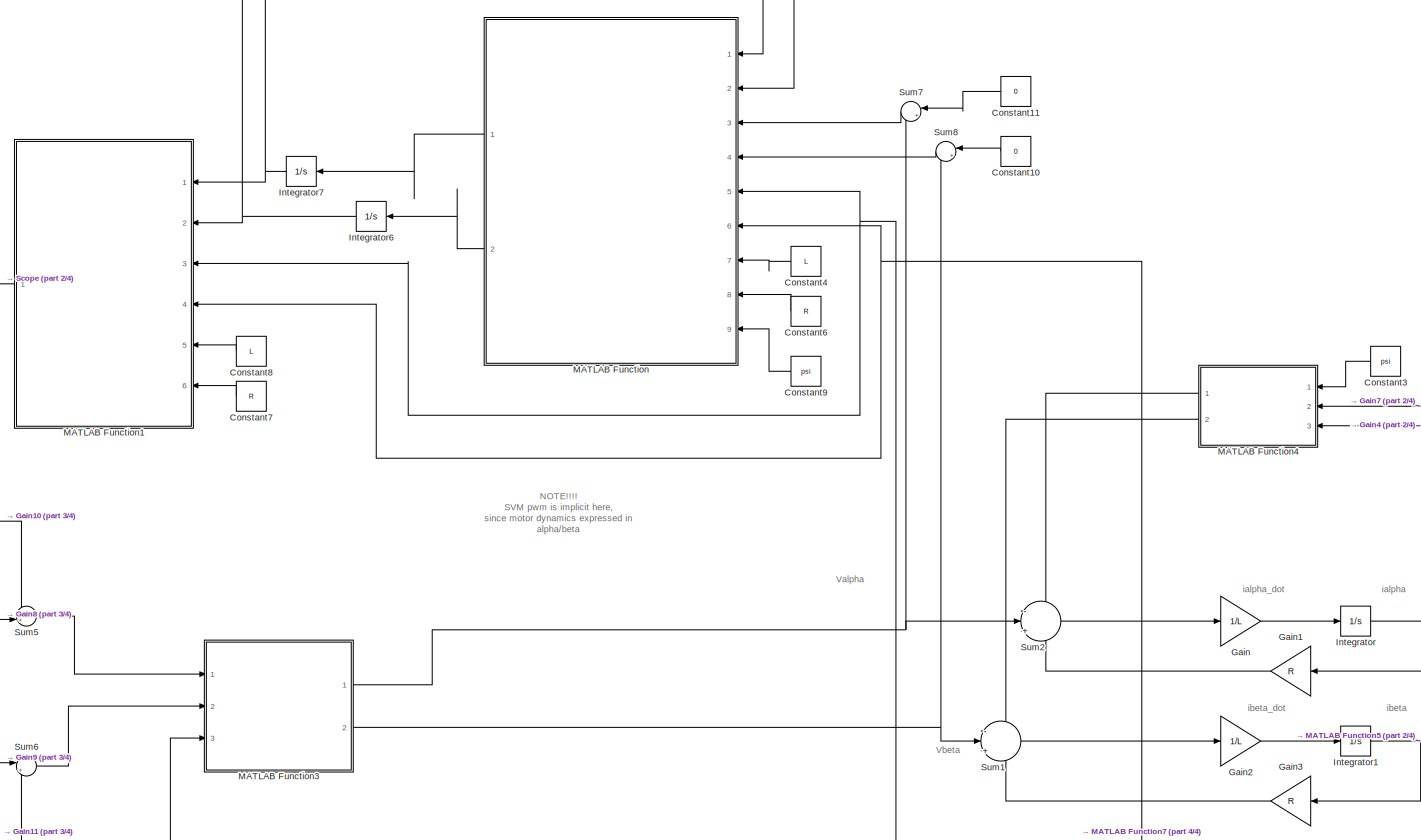
[diagram: root canvas - part 1/4, central region]
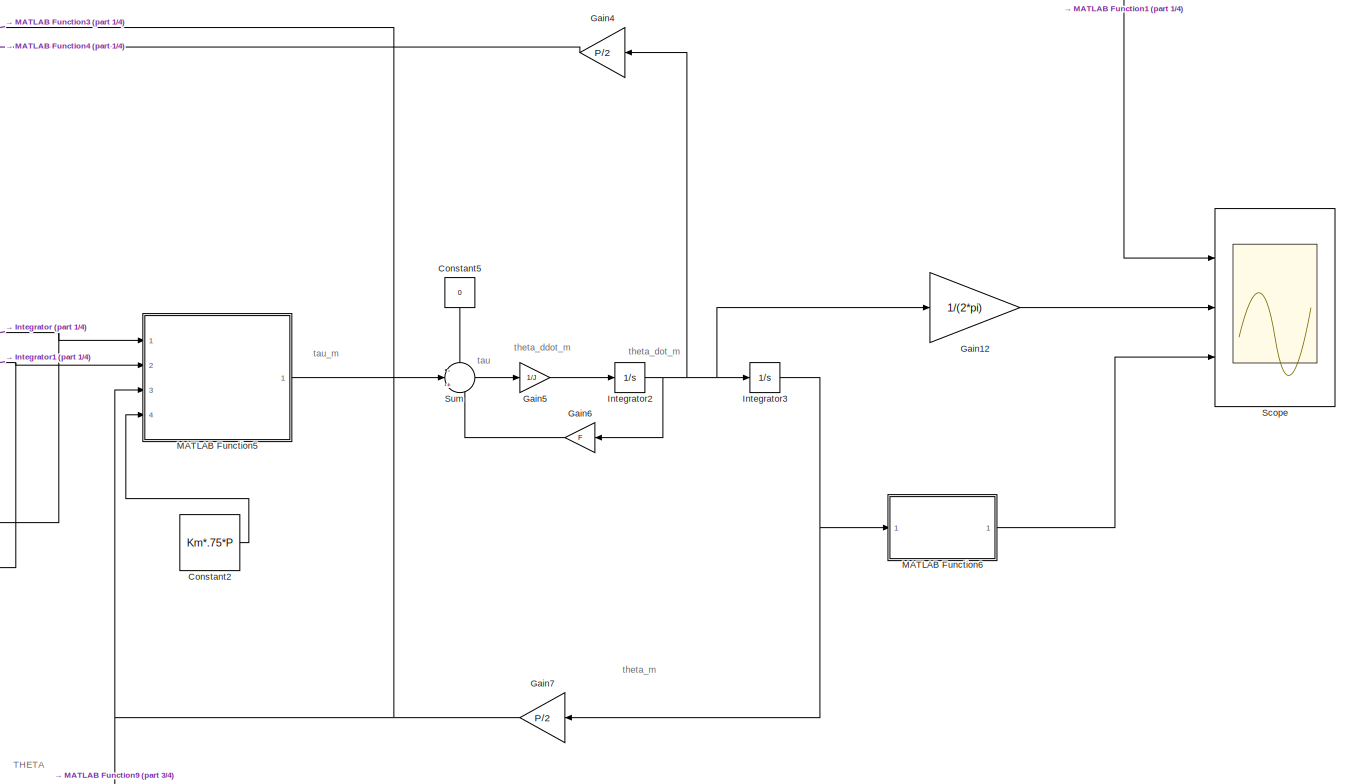
[diagram: root canvas - part 2/4, bottom right region]
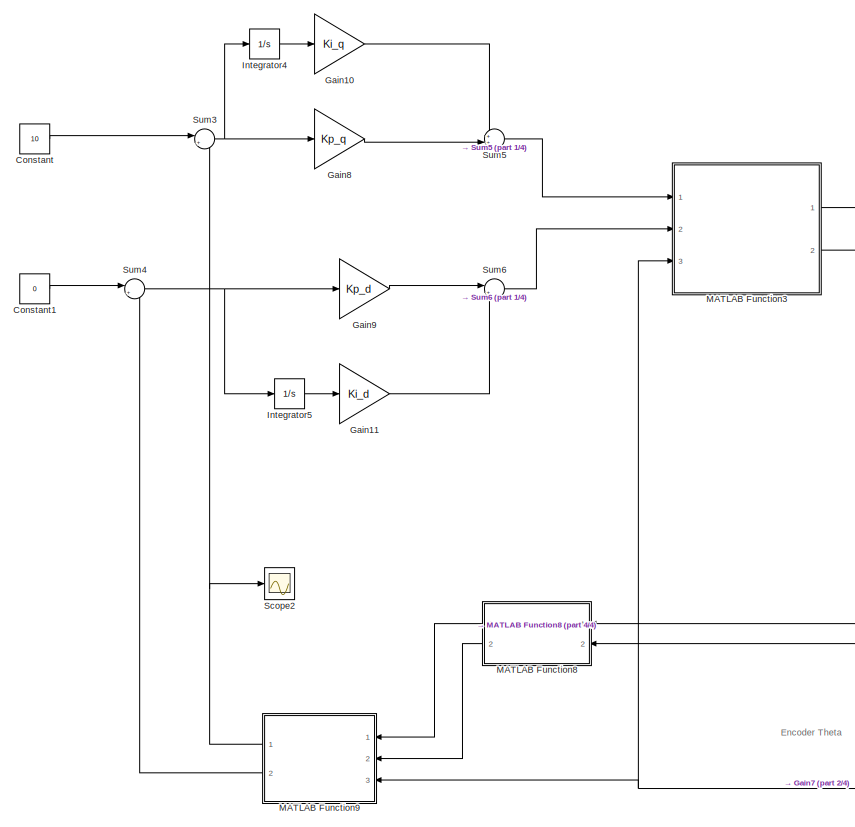
[diagram: root canvas - part 3/4, bottom left region]
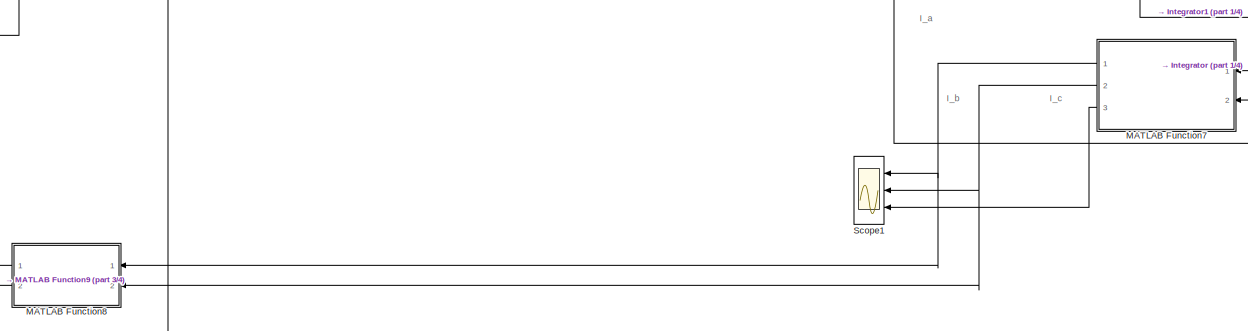
[diagram: root canvas - part 4/4, bottom center region]
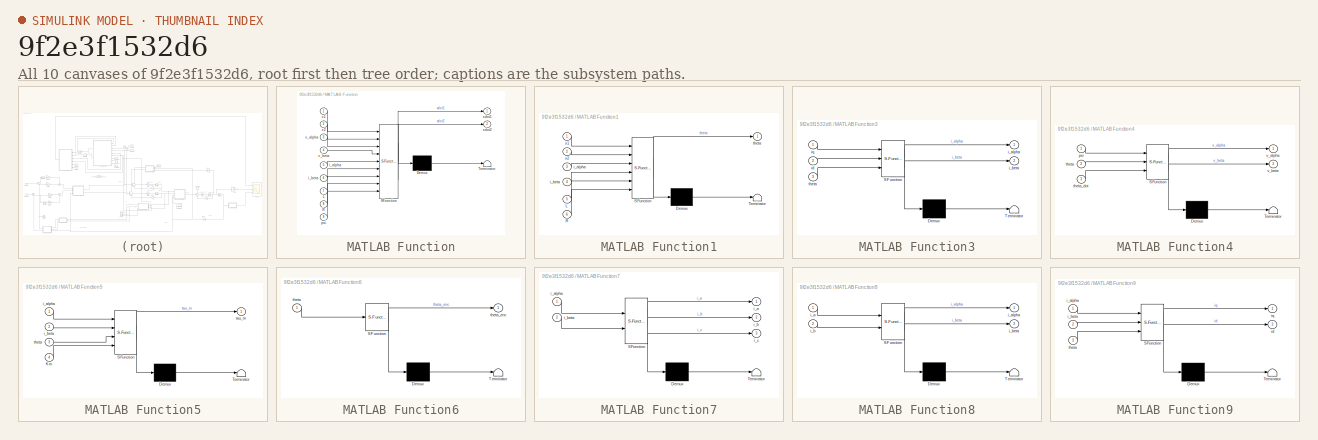
[diagram: thumbnail index - all 10 canvases of the model, root first then tree order]
MODEL slx_9f2e3f1532d6
KIND model
CONFIG AbsTol = auto
CONFIG FixedStep = 1e-6
CONFIG MaxStep = auto
CONFIG MinStep = auto
CONFIG RelTol = 1e-3
CONFIG SampleTimeConstraint = Unconstrained
CONFIG Solver = VariableStepAuto
CONFIG SolverMode = Auto
CONFIG SolverName = VariableStepAuto
CONFIG StartTime = 0.0
CONFIG StopTime = 2
BLOCK [Constant] Constant
  Value = 10
BLOCK [Constant] Constant1
  Value = 0
BLOCK [Constant] Constant10
  Value = 0
BLOCK [Constant] Constant11
  Value = 0
BLOCK [Constant] Constant2
  Value = Km*.75*P
BLOCK [Constant] Constant3
  Value = psi
BLOCK [Constant] Constant4
  Value = L
BLOCK [Constant] Constant5
  Value = 0
BLOCK [Constant] Constant6
  Value = R
BLOCK [Constant] Constant7
  Value = R
BLOCK [Constant] Constant8
  Value = L
BLOCK [Constant] Constant9
  Value = psi
BLOCK [Gain] Gain
  Gain = 1/L
  OutDataTypeStr = Inherit: Inherit via internal rule
  ParamDataTypeStr = Inherit: Inherit via internal rule
  SaturateOnIntegerOverflow = off
BLOCK [Gain] Gain1
  Gain = R
  OutDataTypeStr = Inherit: Inherit via internal rule
  ParamDataTypeStr = Inherit: Inherit via internal rule
  SaturateOnIntegerOverflow = off
BLOCK [Gain] Gain10
  Gain = Ki_q
  OutDataTypeStr = Inherit: Inherit via internal rule
  ParamDataTypeStr = Inherit: Inherit via internal rule
  SaturateOnIntegerOverflow = off
BLOCK [Gain] Gain11
  Gain = Ki_d
  OutDataTypeStr = Inherit: Inherit via internal rule
  ParamDataTypeStr = Inherit: Inherit via internal rule
  SaturateOnIntegerOverflow = off
BLOCK [Gain] Gain12
  Gain = 1/(2*pi)
  OutDataTypeStr = Inherit: Inherit via internal rule
  ParamDataTypeStr = Inherit: Inherit via internal rule
  SaturateOnIntegerOverflow = off
BLOCK [Gain] Gain2
  Gain = 1/L
  OutDataTypeStr = Inherit: Inherit via internal rule
  ParamDataTypeStr = Inherit: Inherit via internal rule
  SaturateOnIntegerOverflow = off
BLOCK [Gain] Gain3
  Gain = R
  OutDataTypeStr = Inherit: Inherit via internal rule
  ParamDataTypeStr = Inherit: Inherit via internal rule
  SaturateOnIntegerOverflow = off
BLOCK [Gain] Gain4
  Gain = P/2
  OutDataTypeStr = Inherit: Inherit via internal rule
  ParamDataTypeStr = Inherit: Inherit via internal rule
  SaturateOnIntegerOverflow = off
BLOCK [Gain] Gain5
  Gain = 1/J
  OutDataTypeStr = Inherit: Inherit via internal rule
  ParamDataTypeStr = Inherit: Inherit via internal rule
  SaturateOnIntegerOverflow = off
BLOCK [Gain] Gain6
  Gain = F
  OutDataTypeStr = Inherit: Inherit via internal rule
  ParamDataTypeStr = Inherit: Inherit via internal rule
  SaturateOnIntegerOverflow = off
BLOCK [Gain] Gain7
  Gain = P/2
  OutDataTypeStr = Inherit: Inherit via internal rule
  ParamDataTypeStr = Inherit: Inherit via internal rule
  SaturateOnIntegerOverflow = off
BLOCK [Gain] Gain8
  Gain = Kp_q
  OutDataTypeStr = Inherit: Inherit via internal rule
  ParamDataTypeStr = Inherit: Inherit via internal rule
  SaturateOnIntegerOverflow = off
BLOCK [Gain] Gain9
  Gain = Kp_d
  OutDataTypeStr = Inherit: Inherit via internal rule
  ParamDataTypeStr = Inherit: Inherit via internal rule
  SaturateOnIntegerOverflow = off
BLOCK [Integrator] Integrator
  Ports = [1, 1]
BLOCK [Integrator] Integrator1
  Ports = [1, 1]
BLOCK [Integrator] Integrator2
  Ports = [1, 1]
BLOCK [Integrator] Integrator3
  Ports = [1, 1]
BLOCK [Integrator] Integrator4
  Ports = [1, 1]
BLOCK [Integrator] Integrator5
  Ports = [1, 1]
BLOCK [Integrator] Integrator6
  Ports = [1, 1]
BLOCK [Integrator] Integrator7
  Ports = [1, 1]
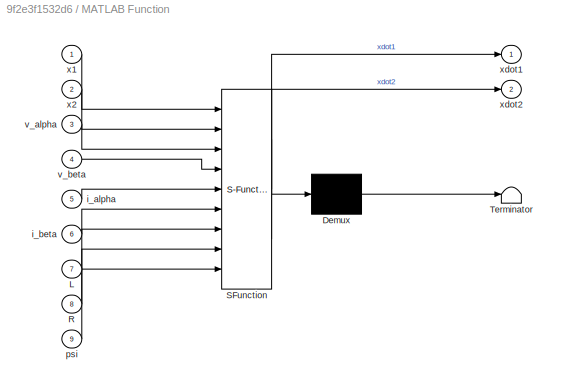
BLOCK [SubSystem] MATLAB Function
  ErrorFcn = Stateflow.Translate.translate
  PermitHierarchicalResolution = ExplicitOnly
  Ports = [9, 2]
  RequestExecContextInheritance = off
  SFBlockType = MATLAB Function
  TreatAsAtomicUnit = on
  Variant = off
BLOCK [Demux] MATLAB Function/ Demux 
  Outputs = 1
  Ports = [1, 1]
BLOCK [S-Function] MATLAB Function/ SFunction 
  EnableBusSupport = on
  FunctionName = sf_sfun
  PortCounts = [9 3]
  Ports = [9, 3]
  SFunctionDeploymentMode = off
  Tag = Stateflow S-Function dynamic_sim 2
BLOCK [Terminator] MATLAB Function/ Terminator 
BLOCK [Inport] MATLAB Function/L
  IconDisplay = Port number
  Port = 7
BLOCK [Inport] MATLAB Function/R
  IconDisplay = Port number
  Port = 8
BLOCK [Inport] MATLAB Function/i_alpha
  IconDisplay = Port number
  Port = 5
BLOCK [Inport] MATLAB Function/i_beta
  IconDisplay = Port number
  Port = 6
BLOCK [Inport] MATLAB Function/psi
  IconDisplay = Port number
  Port = 9
BLOCK [Inport] MATLAB Function/v_alpha
  IconDisplay = Port number
  Port = 3
BLOCK [Inport] MATLAB Function/v_beta
  IconDisplay = Port number
  Port = 4
BLOCK [Inport] MATLAB Function/x1
  IconDisplay = Port number
BLOCK [Inport] MATLAB Function/x2
  IconDisplay = Port number
  Port = 2
BLOCK [Outport] MATLAB Function/xdot1
  IconDisplay = Port number
BLOCK [Outport] MATLAB Function/xdot2
  IconDisplay = Port number
  Port = 2
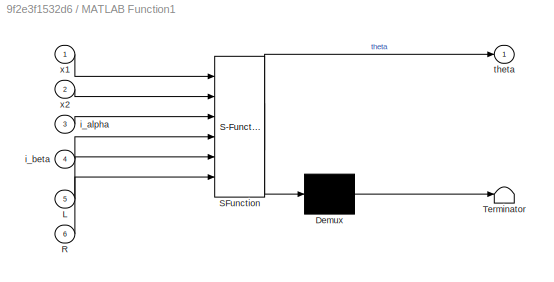
BLOCK [SubSystem] MATLAB Function1
  ErrorFcn = Stateflow.Translate.translate
  PermitHierarchicalResolution = ExplicitOnly
  Ports = [6, 1]
  RequestExecContextInheritance = off
  SFBlockType = MATLAB Function
  TreatAsAtomicUnit = on
  Variant = off
BLOCK [Demux] MATLAB Function1/ Demux 
  Outputs = 1
  Ports = [1, 1]
BLOCK [S-Function] MATLAB Function1/ SFunction 
  EnableBusSupport = on
  FunctionName = sf_sfun
  PortCounts = [6 2]
  Ports = [6, 2]
  SFunctionDeploymentMode = off
  Tag = Stateflow S-Function dynamic_sim 1
BLOCK [Terminator] MATLAB Function1/ Terminator 
BLOCK [Inport] MATLAB Function1/L
  IconDisplay = Port number
  Port = 5
BLOCK [Inport] MATLAB Function1/R
  IconDisplay = Port number
  Port = 6
BLOCK [Inport] MATLAB Function1/i_alpha
  IconDisplay = Port number
  Port = 3
BLOCK [Inport] MATLAB Function1/i_beta
  IconDisplay = Port number
  Port = 4
BLOCK [Outport] MATLAB Function1/theta
  IconDisplay = Port number
BLOCK [Inport] MATLAB Function1/x1
  IconDisplay = Port number
BLOCK [Inport] MATLAB Function1/x2
  IconDisplay = Port number
  Port = 2
BLOCK [SubSystem] MATLAB Function3
  ErrorFcn = Stateflow.Translate.translate
  PermitHierarchicalResolution = ExplicitOnly
  Ports = [3, 2]
  RequestExecContextInheritance = off
  SFBlockType = MATLAB Function
  TreatAsAtomicUnit = on
  Variant = off
BLOCK [Demux] MATLAB Function3/ Demux 
  Outputs = 1
  Ports = [1, 1]
BLOCK [S-Function] MATLAB Function3/ SFunction 
  EnableBusSupport = on
  FunctionName = sf_sfun
  PortCounts = [3 3]
  Ports = [3, 3]
  SFunctionDeploymentMode = off
  Tag = Stateflow S-Function dynamic_sim 4
BLOCK [Terminator] MATLAB Function3/ Terminator 
BLOCK [Outport] MATLAB Function3/i_alpha
  IconDisplay = Port number
BLOCK [Outport] MATLAB Function3/i_beta
  IconDisplay = Port number
  Port = 2
BLOCK [Inport] MATLAB Function3/id
  IconDisplay = Port number
  Port = 2
BLOCK [Inport] MATLAB Function3/iq
  IconDisplay = Port number
BLOCK [Inport] MATLAB Function3/theta
  IconDisplay = Port number
  Port = 3
BLOCK [SubSystem] MATLAB Function4
  ErrorFcn = Stateflow.Translate.translate
  PermitHierarchicalResolution = ExplicitOnly
  Ports = [3, 2]
  RequestExecContextInheritance = off
  SFBlockType = MATLAB Function
  TreatAsAtomicUnit = on
  Variant = off
BLOCK [Demux] MATLAB Function4/ Demux 
  Outputs = 1
  Ports = [1, 1]
BLOCK [S-Function] MATLAB Function4/ SFunction 
  EnableBusSupport = on
  FunctionName = sf_sfun
  PortCounts = [3 3]
  Ports = [3, 3]
  SFunctionDeploymentMode = off
  Tag = Stateflow S-Function dynamic_sim 5
BLOCK [Terminator] MATLAB Function4/ Terminator 
BLOCK [Inport] MATLAB Function4/psi
  IconDisplay = Port number
BLOCK [Inport] MATLAB Function4/theta
  IconDisplay = Port number
  Port = 2
BLOCK [Inport] MATLAB Function4/theta_dot
  IconDisplay = Port number
  Port = 3
BLOCK [Outport] MATLAB Function4/v_alpha
  IconDisplay = Port number
BLOCK [Outport] MATLAB Function4/v_beta
  IconDisplay = Port number
  Port = 2
BLOCK [SubSystem] MATLAB Function5
  ErrorFcn = Stateflow.Translate.translate
  PermitHierarchicalResolution = ExplicitOnly
  Ports = [4, 1]
  RequestExecContextInheritance = off
  SFBlockType = MATLAB Function
  TreatAsAtomicUnit = on
  Variant = off
BLOCK [Demux] MATLAB Function5/ Demux 
  Outputs = 1
  Ports = [1, 1]
BLOCK [S-Function] MATLAB Function5/ SFunction 
  EnableBusSupport = on
  FunctionName = sf_sfun
  PortCounts = [4 2]
  Ports = [4, 2]
  SFunctionDeploymentMode = off
  Tag = Stateflow S-Function dynamic_sim 6
BLOCK [Terminator] MATLAB Function5/ Terminator 
BLOCK [Inport] MATLAB Function5/Km
  IconDisplay = Port number
  Port = 4
BLOCK [Inport] MATLAB Function5/i_alpha
  IconDisplay = Port number
BLOCK [Inport] MATLAB Function5/i_beta
  IconDisplay = Port number
  Port = 2
BLOCK [Outport] MATLAB Function5/tau_m
  IconDisplay = Port number
BLOCK [Inport] MATLAB Function5/theta
  IconDisplay = Port number
  Port = 3
BLOCK [SubSystem] MATLAB Function6
  ErrorFcn = Stateflow.Translate.translate
  PermitHierarchicalResolution = ExplicitOnly
  Ports = [1, 1]
  RequestExecContextInheritance = off
  SFBlockType = MATLAB Function
  TreatAsAtomicUnit = on
  Variant = off
BLOCK [Demux] MATLAB Function6/ Demux 
  Outputs = 1
  Ports = [1, 1]
BLOCK [S-Function] MATLAB Function6/ SFunction 
  EnableBusSupport = on
  FunctionName = sf_sfun
  PortCounts = [1 2]
  Ports = [1, 2]
  SFunctionDeploymentMode = off
  Tag = Stateflow S-Function dynamic_sim 7
BLOCK [Terminator] MATLAB Function6/ Terminator 
BLOCK [Inport] MATLAB Function6/theta
  IconDisplay = Port number
BLOCK [Outport] MATLAB Function6/theta_enc
  IconDisplay = Port number
BLOCK [SubSystem] MATLAB Function7
  ErrorFcn = Stateflow.Translate.translate
  PermitHierarchicalResolution = ExplicitOnly
  Ports = [2, 3]
  RequestExecContextInheritance = off
  SFBlockType = MATLAB Function
  TreatAsAtomicUnit = on
  Variant = off
BLOCK [Demux] MATLAB Function7/ Demux 
  Outputs = 1
  Ports = [1, 1]
BLOCK [S-Function] MATLAB Function7/ SFunction 
  EnableBusSupport = on
  FunctionName = sf_sfun
  PortCounts = [2 4]
  Ports = [2, 4]
  SFunctionDeploymentMode = off
  Tag = Stateflow S-Function dynamic_sim 8
BLOCK [Terminator] MATLAB Function7/ Terminator 
BLOCK [Outport] MATLAB Function7/i_a
  IconDisplay = Port number
BLOCK [Inport] MATLAB Function7/i_alpha
  IconDisplay = Port number
BLOCK [Outport] MATLAB Function7/i_b
  IconDisplay = Port number
  Port = 2
BLOCK [Inport] MATLAB Function7/i_beta
  IconDisplay = Port number
  Port = 2
BLOCK [Outport] MATLAB Function7/i_c
  IconDisplay = Port number
  Port = 3
BLOCK [SubSystem] MATLAB Function8
  ErrorFcn = Stateflow.Translate.translate
  PermitHierarchicalResolution = ExplicitOnly
  Ports = [2, 2]
  RequestExecContextInheritance = off
  SFBlockType = MATLAB Function
  TreatAsAtomicUnit = on
  Variant = off
BLOCK [Demux] MATLAB Function8/ Demux 
  Outputs = 1
  Ports = [1, 1]
BLOCK [S-Function] MATLAB Function8/ SFunction 
  EnableBusSupport = on
  FunctionName = sf_sfun
  PortCounts = [2 3]
  Ports = [2, 3]
  SFunctionDeploymentMode = off
  Tag = Stateflow S-Function dynamic_sim 9
BLOCK [Terminator] MATLAB Function8/ Terminator 
BLOCK [Inport] MATLAB Function8/i_a
  IconDisplay = Port number
BLOCK [Outport] MATLAB Function8/i_alpha
  IconDisplay = Port number
BLOCK [Inport] MATLAB Function8/i_b
  IconDisplay = Port number
  Port = 2
BLOCK [Outport] MATLAB Function8/i_beta
  IconDisplay = Port number
  Port = 2
BLOCK [SubSystem] MATLAB Function9
  ErrorFcn = Stateflow.Translate.translate
  PermitHierarchicalResolution = ExplicitOnly
  Ports = [3, 2]
  RequestExecContextInheritance = off
  SFBlockType = MATLAB Function
  TreatAsAtomicUnit = on
  Variant = off
BLOCK [Demux] MATLAB Function9/ Demux 
  Outputs = 1
  Ports = [1, 1]
BLOCK [S-Function] MATLAB Function9/ SFunction 
  EnableBusSupport = on
  FunctionName = sf_sfun
  PortCounts = [3 3]
  Ports = [3, 3]
  SFunctionDeploymentMode = off
  Tag = Stateflow S-Function dynamic_sim 10
BLOCK [Terminator] MATLAB Function9/ Terminator 
BLOCK [Inport] MATLAB Function9/i_alpha
  IconDisplay = Port number
BLOCK [Inport] MATLAB Function9/i_beta
  IconDisplay = Port number
  Port = 2
BLOCK [Outport] MATLAB Function9/id
  IconDisplay = Port number
  Port = 2
BLOCK [Outport] MATLAB Function9/iq
  IconDisplay = Port number
BLOCK [Inport] MATLAB Function9/theta
  IconDisplay = Port number
  Port = 3
BLOCK [Scope] Scope
  NumInputPorts = 3
  Ports = [3]
  ScopeSpecificationString = Simulink.scopes.TimeScopeBlockCfg('CurrentConfiguration', extmgr.ConfigurationSet(extmgr.Configuration('Core','General UI',true),extmgr.Configuration('Core','Source UI',true),extmgr.Configuration('Sources','WiredSimulink',true),extmgr.Configuration('Visuals','Time Domain',true,'SerializedDisplays',{struct('MinYLimReal','-10.86097','MaxYLimReal','6.94667','YLabelReal','','MinYLimMag','0.00000','Max...<+1467ch>
BLOCK [Scope] Scope1
  NumInputPorts = 3
  Ports = [3]
  ScopeSpecificationString = Simulink.scopes.TimeScopeBlockCfg('CurrentConfiguration', extmgr.ConfigurationSet(extmgr.Configuration('Core','General UI',true),extmgr.Configuration('Core','Source UI',true),extmgr.Configuration('Sources','WiredSimulink',true,'DataLoggingVariableName','ScopeData1'),extmgr.Configuration('Visuals','Time Domain',true,'SerializedDisplays',{struct('MinYLimReal','-3.81187','MaxYLimReal','3.8121','YLabe...<+1525ch>
BLOCK [Scope] Scope2
  Ports = [1]
  ScopeSpecificationString = Simulink.scopes.TimeScopeBlockCfg('CurrentConfiguration', extmgr.ConfigurationSet(extmgr.Configuration('Core','General UI',true),extmgr.Configuration('Core','Source UI',true),extmgr.Configuration('Sources','WiredSimulink',true,'DataLoggingVariableName','ScopeData2'),extmgr.Configuration('Visuals','Time Domain',true,'SerializedDisplays',{struct('MinYLimReal','-2.14894','MaxYLimReal','19.34044','YLa...<+1460ch>
BLOCK [Sum] Sum
  IconShape = round
  InputSameDT = off
  Inputs = -|+|-
  OutDataTypeStr = Inherit: Inherit via internal rule
  Ports = [3, 1]
  SaturateOnIntegerOverflow = off
BLOCK [Sum] Sum1
  IconShape = round
  InputSameDT = off
  Inputs = -|+|-
  OutDataTypeStr = Inherit: Inherit via internal rule
  Ports = [3, 1]
  SaturateOnIntegerOverflow = off
BLOCK [Sum] Sum2
  IconShape = round
  InputSameDT = off
  Inputs = -|+|-
  OutDataTypeStr = Inherit: Inherit via internal rule
  Ports = [3, 1]
  SaturateOnIntegerOverflow = off
BLOCK [Sum] Sum3
  IconShape = round
  InputSameDT = off
  Inputs = |+-
  OutDataTypeStr = Inherit: Inherit via internal rule
  Ports = [2, 1]
  SaturateOnIntegerOverflow = off
BLOCK [Sum] Sum4
  IconShape = round
  InputSameDT = off
  Inputs = |+-
  OutDataTypeStr = Inherit: Inherit via internal rule
  Ports = [2, 1]
  SaturateOnIntegerOverflow = off
BLOCK [Sum] Sum5
  IconShape = round
  InputSameDT = off
  Inputs = ++|
  OutDataTypeStr = Inherit: Inherit via internal rule
  Ports = [2, 1]
  SaturateOnIntegerOverflow = off
BLOCK [Sum] Sum6
  IconShape = round
  InputSameDT = off
  Inputs = |++
  OutDataTypeStr = Inherit: Inherit via internal rule
  Ports = [2, 1]
  SaturateOnIntegerOverflow = off
BLOCK [Sum] Sum7
  IconShape = round
  InputSameDT = off
  Inputs = |++
  OutDataTypeStr = Inherit: Inherit via internal rule
  Ports = [2, 1]
  SaturateOnIntegerOverflow = off
BLOCK [Sum] Sum8
  IconShape = round
  InputSameDT = off
  Inputs = |++
  OutDataTypeStr = Inherit: Inherit via internal rule
  Ports = [2, 1]
  SaturateOnIntegerOverflow = off
ANNOTATION (root): Encoder Theta
ANNOTATION (root): THETA
ANNOTATION (root): NOTE!!!! SVM pwm is implicit here, since motor dynamics expressed in alpha/beta
ANNOTATION (root): theta_m
ANNOTATION (root): I_a
ANNOTATION (root): I_b
ANNOTATION (root): I_c
ANNOTATION (root): Valpha
ANNOTATION (root): Vbeta
ANNOTATION (root): ialpha
ANNOTATION (root): ialpha_dot
ANNOTATION (root): ibeta
ANNOTATION (root): ibeta_dot
ANNOTATION (root): tau
ANNOTATION (root): tau_m
ANNOTATION (root): theta_ddot_m
ANNOTATION (root): theta_dot_m
LINE Constant10:1 -> Sum8:1
LINE Constant11:1 -> Sum7:1
LINE Constant1:1 -> Sum4:1
LINE Constant2:1 -> MATLAB Function5:4
LINE Constant3:1 -> MATLAB Function4:1
LINE Constant4:1 -> MATLAB Function:7
LINE Constant5:1 -> Sum:1
LINE Constant6:1 -> MATLAB Function:8
LINE Constant7:1 -> MATLAB Function1:6
LINE Constant8:1 -> MATLAB Function1:5
LINE Constant9:1 -> MATLAB Function:9
LINE Constant:1 -> Sum3:1
LINE Gain10:1 -> Sum5:1
LINE Gain11:1 -> Sum6:2
LINE Gain12:1 -> Scope:2
LINE Gain1:1 -> Sum2:3
LINE Gain2:1 -> Integrator1:1
LINE Gain3:1 -> Sum1:3
LINE Gain4:1 -> MATLAB Function4:3
LINE Gain5:1 -> Integrator2:1
LINE Gain6:1 -> Sum:3
NET Gain7:1 -> MATLAB Function3:3, MATLAB Function4:2, MATLAB Function5:3, MATLAB Function9:3
LINE Gain8:1 -> Sum5:2
LINE Gain9:1 -> Sum6:1
LINE Gain:1 -> Integrator:1
NET Integrator1:1 -> Gain3:1, MATLAB Function1:4, MATLAB Function5:2, MATLAB Function7:2, MATLAB Function:6
NET Integrator2:1 -> Gain12:1, Gain4:1, Gain6:1, Integrator3:1
NET Integrator3:1 -> Gain7:1, MATLAB Function6:1
LINE Integrator4:1 -> Gain10:1
LINE Integrator5:1 -> Gain11:1
NET Integrator6:1 -> MATLAB Function1:2, MATLAB Function:2
NET Integrator7:1 -> MATLAB Function1:1, MATLAB Function:1
NET Integrator:1 -> Gain1:1, MATLAB Function1:3, MATLAB Function5:1, MATLAB Function7:1, MATLAB Function:5
LINE MATLAB Function1:1 -> Scope:1
NET MATLAB Function3:1 -> Sum2:2, Sum7:2
NET MATLAB Function3:2 -> Sum1:2, Sum8:2
LINE MATLAB Function4:1 -> Sum2:1
LINE MATLAB Function4:2 -> Sum1:1
LINE MATLAB Function5:1 -> Sum:2
LINE MATLAB Function6:1 -> Scope:3
NET MATLAB Function7:1 -> MATLAB Function8:1, Scope1:1
NET MATLAB Function7:2 -> MATLAB Function8:2, Scope1:2
LINE MATLAB Function7:3 -> Scope1:3
LINE MATLAB Function8:1 -> MATLAB Function9:1
LINE MATLAB Function8:2 -> MATLAB Function9:2
NET MATLAB Function9:1 -> Scope2:1, Sum3:2
LINE MATLAB Function9:2 -> Sum4:2
LINE MATLAB Function:1 -> Integrator7:1
LINE MATLAB Function:2 -> Integrator6:1
LINE Sum1:1 -> Gain2:1
LINE Sum2:1 -> Gain:1
NET Sum3:1 -> Gain8:1, Integrator4:1
NET Sum4:1 -> Gain9:1, Integrator5:1
LINE Sum5:1 -> MATLAB Function3:1
LINE Sum6:1 -> MATLAB Function3:2
LINE Sum7:1 -> MATLAB Function:3
LINE Sum8:1 -> MATLAB Function:4
LINE Sum:1 -> Gain5:1
note: NET lines group one-source signal fan-out (src -> all destinations, sorted); 1:1 wires keep LINE
CHART MATLAB Function1 states=1 transitions=1
  STATE_LABEL 'eML_blk_kernel()'
  STATE_LABEL 'SCRIPT:\nfunction theta = position_estimator(x1, x2, i_alpha, i_beta, L, R)\ntheta = atan2((x2 - L*i_beta),-(x1-L*i_alpha));\nend'
CHART MATLAB Function states=1 transitions=1
  STATE_LABEL 'eML_blk_kernel()'
  STATE_LABEL 'SCRIPT:\nfunction [xdot1,xdot2] = observer( x1, x2, v_alpha,v_beta,i_alpha,i_beta, L, R, psi)\n    y1 = -R*i_alpha + v_alpha;\n    y2 = -R*i_beta + v_beta;\n    \n    n1 = x1 - L*i_alpha;\n    n2 = x2 - L*i_beta;\n    \n    gamma = 1000;\n    scale = (psi*psi- (n1*n1+n2*n2));\n    xdot1 = y1 + gamma * n1 * scale;\n    xdot2 = y2 + gamma * n2 * scale; \nend'
CHART MATLAB Function3 states=1 transitions=1
  STATE_LABEL 'eML_blk_kernel()'
  STATE_LABEL 'SCRIPT:\nfunction [i_alpha,i_beta] = inverse_park(iq, id, theta)\n    sin_theta = sin(theta);\n    cos_theta = cos(theta);\n    i_alpha = id*cos_theta - iq*sin_theta;\n\ti_beta = id*sin_theta + iq*cos_theta;\nend'
CHART MATLAB Function4 states=1 transitions=1
  STATE_LABEL 'eML_blk_kernel()'
  STATE_LABEL 'SCRIPT:\nfunction [v_alpha,v_beta] = bemf(psi, theta, theta_dot)\n% v_alpha = theta_dot * psi * sin(theta);\n% v_beta = -theta_dot * psi * cos(theta);\n\nv_alpha = - theta_dot * psi * cos(theta);\nv_beta = theta_dot * psi * sin(theta);\nend'
CHART MATLAB Function5 states=1 transitions=1
  STATE_LABEL 'eML_blk_kernel()'
  STATE_LABEL 'SCRIPT:\nfunction tau_m = fcn(i_alpha, i_beta, theta, Km)\n%     tau_m = Km*(i_alpha * cos(theta) - i_beta*sin(theta));\ntau_m = Km*(-i_alpha*sin(theta)+i_beta*cos(theta));\nend'
CHART MATLAB Function6 states=1 transitions=1
  STATE_LABEL 'eML_blk_kernel()'
  STATE_LABEL 'SCRIPT:\nfunction theta_enc = aligned_encoder(theta)\ntheta_enc = atan2(sin(theta),cos(theta));\nend'
CHART MATLAB Function7 states=1 transitions=1
  STATE_LABEL 'eML_blk_kernel()'
  STATE_LABEL 'SCRIPT:\nfunction [i_a,i_b,i_c] = inverse_clarke(i_alpha,i_beta)\n    sqrt_3_by_2 = sqrt(3)*.5;\n\ti_a = i_alpha;\n\ti_b = -.5*i_alpha + sqrt_3_by_2*i_beta;\n\ti_c = -.5*i_alpha - sqrt_3_by_2*i_beta;\nend'
CHART MATLAB Function8 states=1 transitions=1
  STATE_LABEL 'eML_blk_kernel()'
  STATE_LABEL 'SCRIPT:\nfunction [i_alpha, i_beta] = clarke(i_a, i_b)\n    i_alpha = i_a;\n\ti_beta = (1/sqrt(3))*i_a + (2/sqrt(3))*i_b;\nend'
CHART MATLAB Function9 states=1 transitions=1
  STATE_LABEL 'eML_blk_kernel()'
  STATE_LABEL 'SCRIPT:\nfunction [iq,id] = park(i_alpha, i_beta, theta)\n    cos_theta = cos(theta);\n    sin_theta = sin(theta);\n\tid = i_alpha*cos_theta+i_beta*sin_theta;\n\tiq = -i_alpha*sin_theta+i_beta*cos_theta;\nend'
